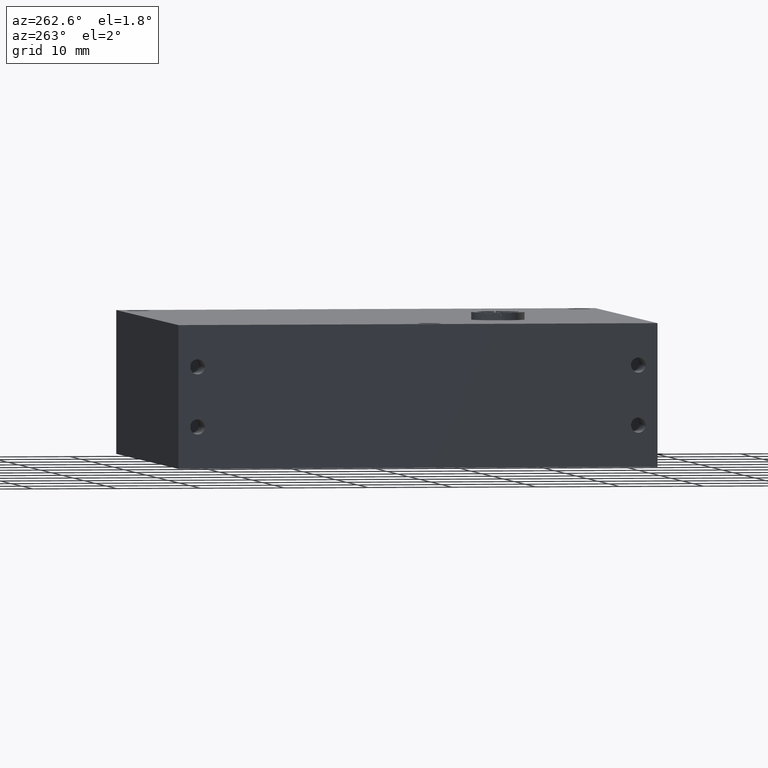
[diagram: clean part render]
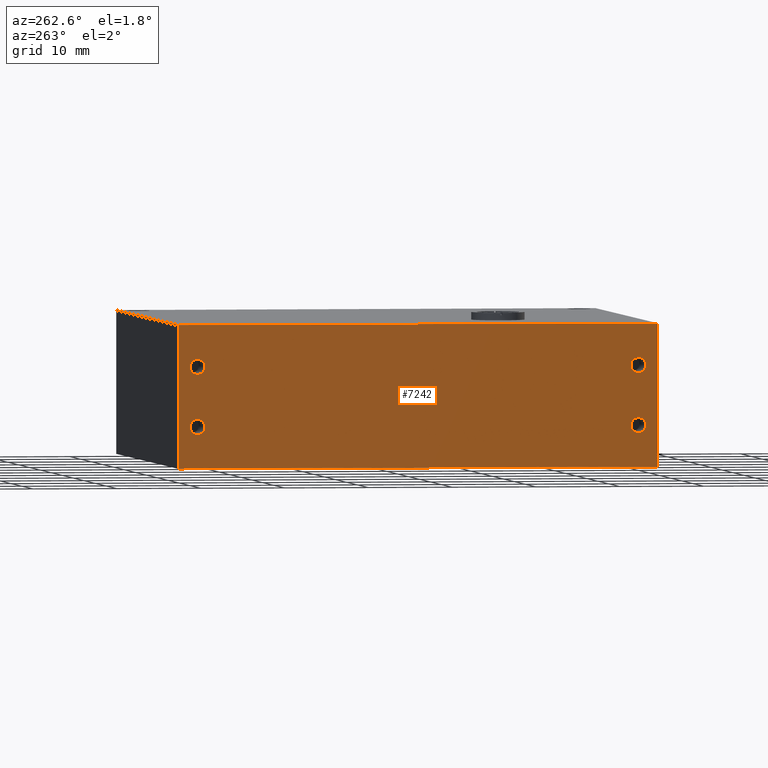
[diagram: same view with one face highlighted and labeled with its STEP entity id]
A machine part, auxiliary view. The second image highlights one B-rep face of the part: STEP entity #7242.
In plain terms, the highlighted planar face has unit normal (1, 0, 0).
Its self-contained STEP definition (entity closure, byte-faithful):
#100 = VERTEX_POINT ( 'NONE', #8004 ) ;
#157 = CIRCLE ( 'NONE', #364, 0.03499999999999949000 ) ;
#364 = AXIS2_PLACEMENT_3D ( 'NONE', #8082, #5306, #9023 ) ;
#398 = VECTOR ( 'NONE', #852, 39.37007874015748100 ) ;
#677 = CARTESIAN_POINT ( 'NONE',  ( -1.125000000000000000, -1.034999999999999900, 0.4750000000000002000 ) ) ;
#695 = LINE ( 'NONE', #11038, #398 ) ;
#762 = VERTEX_POINT ( 'NONE', #3770 ) ;
#852 = DIRECTION ( 'NONE',  ( -0.0000000000000000000, -1.000000000000000000, -0.0000000000000000000 ) ) ;
#1097 = EDGE_CURVE ( 'NONE', #1187, #1613, #5297, .T. ) ;
#1105 = CARTESIAN_POINT ( 'NONE',  ( -1.125000000000000000, -1.125000000000000200, 0.6700000000000000400 ) ) ;
#1187 = VERTEX_POINT ( 'NONE', #3459 ) ;
#1311 = AXIS2_PLACEMENT_3D ( 'NONE', #2961, #4863, #3868 ) ;
#1368 = AXIS2_PLACEMENT_3D ( 'NONE', #3519, #4476, #9077 ) ;
#1438 = AXIS2_PLACEMENT_3D ( 'NONE', #677, #7168, #3506 ) ;
#1448 = EDGE_CURVE ( 'NONE', #10034, #8832, #157, .T. ) ;
#1613 = VERTEX_POINT ( 'NONE', #7307 ) ;
#1659 = ORIENTED_EDGE ( 'NONE', *, *, #8792, .F. ) ;
#1679 = CARTESIAN_POINT ( 'NONE',  ( -1.125000000000000000, -1.034999999999999900, 0.1950000000000001700 ) ) ;
#1800 = EDGE_CURVE ( 'NONE', #10913, #8726, #3653, .T. ) ;
#1844 = DIRECTION ( 'NONE',  ( -0.0000000000000000000, -1.000000000000000000, -0.0000000000000000000 ) ) ;
#1971 = FACE_BOUND ( 'NONE', #10856, .T. ) ;
#2219 = ORIENTED_EDGE ( 'NONE', *, *, #7817, .T. ) ;
#2294 = CARTESIAN_POINT ( 'NONE',  ( -1.125000000000000000, 1.034999999999999700, 0.1600000000000004200 ) ) ;
#2387 = ORIENTED_EDGE ( 'NONE', *, *, #7777, .F. ) ;
#2400 = CIRCLE ( 'NONE', #2761, 0.03499999999999949000 ) ;
#2475 = CARTESIAN_POINT ( 'NONE',  ( -1.125000000000000000, -1.034999999999999900, 0.4750000000000002000 ) ) ;
#2562 = LINE ( 'NONE', #7308, #3734 ) ;
#2584 = DIRECTION ( 'NONE',  ( -0.0000000000000000000, -0.0000000000000000000, -1.000000000000000000 ) ) ;
#2761 = AXIS2_PLACEMENT_3D ( 'NONE', #5383, #6141, #9014 ) ;
#2931 = DIRECTION ( 'NONE',  ( -1.000000000000000000, -0.0000000000000000000, -0.0000000000000000000 ) ) ;
#2961 = CARTESIAN_POINT ( 'NONE',  ( -1.125000000000000000, 1.034999999999999700, 0.4749999999999999200 ) ) ;
#3060 = CARTESIAN_POINT ( 'NONE',  ( -1.125000000000000000, -1.125000000000000200, 0.6700000000000000400 ) ) ;
#3123 = PLANE ( 'NONE',  #9454 ) ;
#3297 = CARTESIAN_POINT ( 'NONE',  ( -1.125000000000000000, 1.034999999999999700, 0.5099999999999994500 ) ) ;
#3441 = CARTESIAN_POINT ( 'NONE',  ( -1.125000000000000000, -1.125000000000000200, 0.0000000000000000000 ) ) ;
#3442 = FACE_OUTER_BOUND ( 'NONE', #9976, .T. ) ;
#3459 = CARTESIAN_POINT ( 'NONE',  ( -1.125000000000000000, -1.034999999999999900, 0.5099999999999996800 ) ) ;
#3506 = DIRECTION ( 'NONE',  ( 0.0000000000000000000, 0.0000000000000000000, 1.000000000000000000 ) ) ;
#3519 = CARTESIAN_POINT ( 'NONE',  ( -1.125000000000000000, 1.034999999999999700, 0.4749999999999999200 ) ) ;
#3574 = DIRECTION ( 'NONE',  ( 0.0000000000000000000, 0.0000000000000000000, 1.000000000000000000 ) ) ;
#3653 = CIRCLE ( 'NONE', #1368, 0.03499999999999949000 ) ;
#3734 = VECTOR ( 'NONE', #1844, 39.37007874015748100 ) ;
#3770 = CARTESIAN_POINT ( 'NONE',  ( -1.125000000000000000, -1.034999999999999900, 0.1600000000000007000 ) ) ;
#3788 = EDGE_CURVE ( 'NONE', #5869, #11507, #10698, .T. ) ;
#3868 = DIRECTION ( 'NONE',  ( 0.0000000000000000000, 0.0000000000000000000, 1.000000000000000000 ) ) ;
#3944 = DIRECTION ( 'NONE',  ( 1.000000000000000000, 0.0000000000000000000, 0.0000000000000000000 ) ) ;
#4184 = FACE_BOUND ( 'NONE', #6791, .T. ) ;
#4348 = CIRCLE ( 'NONE', #9987, 0.03499999999999949000 ) ;
#4415 = VERTEX_POINT ( 'NONE', #4464 ) ;
#4464 = CARTESIAN_POINT ( 'NONE',  ( -1.125000000000000000, 1.124999999999999800, 0.6700000000000000400 ) ) ;
#4476 = DIRECTION ( 'NONE',  ( -1.000000000000000000, -0.0000000000000000000, -0.0000000000000000000 ) ) ;
#4790 = CARTESIAN_POINT ( 'NONE',  ( -1.125000000000000000, 1.034999999999999700, 0.1949999999999999000 ) ) ;
#4863 = DIRECTION ( 'NONE',  ( -1.000000000000000000, -0.0000000000000000000, -0.0000000000000000000 ) ) ;
#5023 = ORIENTED_EDGE ( 'NONE', *, *, #11512, .T. ) ;
#5046 = VECTOR ( 'NONE', #10554, 39.37007874015748100 ) ;
#5297 = CIRCLE ( 'NONE', #1438, 0.03499999999999949000 ) ;
#5306 = DIRECTION ( 'NONE',  ( -1.000000000000000000, -0.0000000000000000000, -0.0000000000000000000 ) ) ;
#5383 = CARTESIAN_POINT ( 'NONE',  ( -1.125000000000000000, -1.034999999999999900, 0.1950000000000001700 ) ) ;
#5792 = CARTESIAN_POINT ( 'NONE',  ( -1.125000000000000000, -1.034999999999999900, 0.2299999999999996800 ) ) ;
#5854 = EDGE_CURVE ( 'NONE', #762, #6613, #9859, .T. ) ;
#5869 = VERTEX_POINT ( 'NONE', #8303 ) ;
#5914 = EDGE_CURVE ( 'NONE', #8832, #10034, #4348, .T. ) ;
#6141 = DIRECTION ( 'NONE',  ( -1.000000000000000000, -0.0000000000000000000, -0.0000000000000000000 ) ) ;
#6354 = ORIENTED_EDGE ( 'NONE', *, *, #1097, .F. ) ;
#6428 = ORIENTED_EDGE ( 'NONE', *, *, #5914, .F. ) ;
#6613 = VERTEX_POINT ( 'NONE', #5792 ) ;
#6711 = DIRECTION ( 'NONE',  ( 0.0000000000000000000, 0.0000000000000000000, -1.000000000000000000 ) ) ;
#6791 = EDGE_LOOP ( 'NONE', ( #1659, #7016 ) ) ;
#7016 = ORIENTED_EDGE ( 'NONE', *, *, #5854, .F. ) ;
#7168 = DIRECTION ( 'NONE',  ( -1.000000000000000000, -0.0000000000000000000, -0.0000000000000000000 ) ) ;
#7242 = ADVANCED_FACE ( 'NONE', ( #1971, #11757, #11606, #4184, #3442 ), #3123, .F. ) ;
#7293 = AXIS2_PLACEMENT_3D ( 'NONE', #2475, #9211, #3574 ) ;
#7307 = CARTESIAN_POINT ( 'NONE',  ( -1.125000000000000000, -1.034999999999999900, 0.4400000000000007200 ) ) ;
#7308 = CARTESIAN_POINT ( 'NONE',  ( -1.125000000000000000, -1.125000000000000200, 0.6700000000000000400 ) ) ;
#7777 = EDGE_CURVE ( 'NONE', #4415, #5869, #2562, .T. ) ;
#7817 = EDGE_CURVE ( 'NONE', #100, #11507, #695, .T. ) ;
#8004 = CARTESIAN_POINT ( 'NONE',  ( -1.125000000000000000, 1.124999999999999800, 0.0000000000000000000 ) ) ;
#8032 = CARTESIAN_POINT ( 'NONE',  ( -1.125000000000000000, 1.124999999999999800, 0.6700000000000000400 ) ) ;
#8082 = CARTESIAN_POINT ( 'NONE',  ( -1.125000000000000000, 1.034999999999999700, 0.1949999999999999000 ) ) ;
#8303 = CARTESIAN_POINT ( 'NONE',  ( -1.125000000000000000, -1.125000000000000200, 0.6700000000000000400 ) ) ;
#8402 = ORIENTED_EDGE ( 'NONE', *, *, #10233, .F. ) ;
#8627 = LINE ( 'NONE', #8032, #10520 ) ;
#8673 = EDGE_CURVE ( 'NONE', #1613, #1187, #10987, .T. ) ;
#8726 = VERTEX_POINT ( 'NONE', #3297 ) ;
#8792 = EDGE_CURVE ( 'NONE', #6613, #762, #2400, .T. ) ;
#8832 = VERTEX_POINT ( 'NONE', #10019 ) ;
#8870 = CARTESIAN_POINT ( 'NONE',  ( -1.125000000000000000, 1.034999999999999700, 0.4400000000000004500 ) ) ;
#9014 = DIRECTION ( 'NONE',  ( 0.0000000000000000000, 0.0000000000000000000, 1.000000000000000000 ) ) ;
#9023 = DIRECTION ( 'NONE',  ( 0.0000000000000000000, 0.0000000000000000000, 1.000000000000000000 ) ) ;
#9077 = DIRECTION ( 'NONE',  ( 0.0000000000000000000, 0.0000000000000000000, 1.000000000000000000 ) ) ;
#9117 = DIRECTION ( 'NONE',  ( 0.0000000000000000000, 0.0000000000000000000, 1.000000000000000000 ) ) ;
#9211 = DIRECTION ( 'NONE',  ( -1.000000000000000000, -0.0000000000000000000, -0.0000000000000000000 ) ) ;
#9270 = DIRECTION ( 'NONE',  ( 0.0000000000000000000, 0.0000000000000000000, 1.000000000000000000 ) ) ;
#9454 = AXIS2_PLACEMENT_3D ( 'NONE', #1105, #3944, #6711 ) ;
#9859 = CIRCLE ( 'NONE', #11304, 0.03499999999999949000 ) ;
#9898 = ORIENTED_EDGE ( 'NONE', *, *, #8673, .F. ) ;
#9976 = EDGE_LOOP ( 'NONE', ( #2219, #11318, #2387, #5023 ) ) ;
#9987 = AXIS2_PLACEMENT_3D ( 'NONE', #4790, #2931, #9270 ) ;
#10019 = CARTESIAN_POINT ( 'NONE',  ( -1.125000000000000000, 1.034999999999999700, 0.2299999999999994000 ) ) ;
#10034 = VERTEX_POINT ( 'NONE', #2294 ) ;
#10091 = DIRECTION ( 'NONE',  ( -1.000000000000000000, -0.0000000000000000000, -0.0000000000000000000 ) ) ;
#10159 = ORIENTED_EDGE ( 'NONE', *, *, #1448, .F. ) ;
#10233 = EDGE_CURVE ( 'NONE', #8726, #10913, #10824, .T. ) ;
#10490 = EDGE_LOOP ( 'NONE', ( #6428, #10159 ) ) ;
#10520 = VECTOR ( 'NONE', #2584, 39.37007874015748100 ) ;
#10554 = DIRECTION ( 'NONE',  ( -0.0000000000000000000, -0.0000000000000000000, -1.000000000000000000 ) ) ;
#10698 = LINE ( 'NONE', #3060, #5046 ) ;
#10824 = CIRCLE ( 'NONE', #1311, 0.03499999999999949000 ) ;
#10856 = EDGE_LOOP ( 'NONE', ( #8402, #11214 ) ) ;
#10913 = VERTEX_POINT ( 'NONE', #8870 ) ;
#10987 = CIRCLE ( 'NONE', #7293, 0.03499999999999949000 ) ;
#11038 = CARTESIAN_POINT ( 'NONE',  ( -1.125000000000000000, -1.125000000000000200, 0.0000000000000000000 ) ) ;
#11214 = ORIENTED_EDGE ( 'NONE', *, *, #1800, .F. ) ;
#11304 = AXIS2_PLACEMENT_3D ( 'NONE', #1679, #10091, #9117 ) ;
#11318 = ORIENTED_EDGE ( 'NONE', *, *, #3788, .F. ) ;
#11507 = VERTEX_POINT ( 'NONE', #3441 ) ;
#11512 = EDGE_CURVE ( 'NONE', #4415, #100, #8627, .T. ) ;
#11606 = FACE_BOUND ( 'NONE', #11663, .T. ) ;
#11663 = EDGE_LOOP ( 'NONE', ( #6354, #9898 ) ) ;
#11757 = FACE_BOUND ( 'NONE', #10490, .T. ) ;